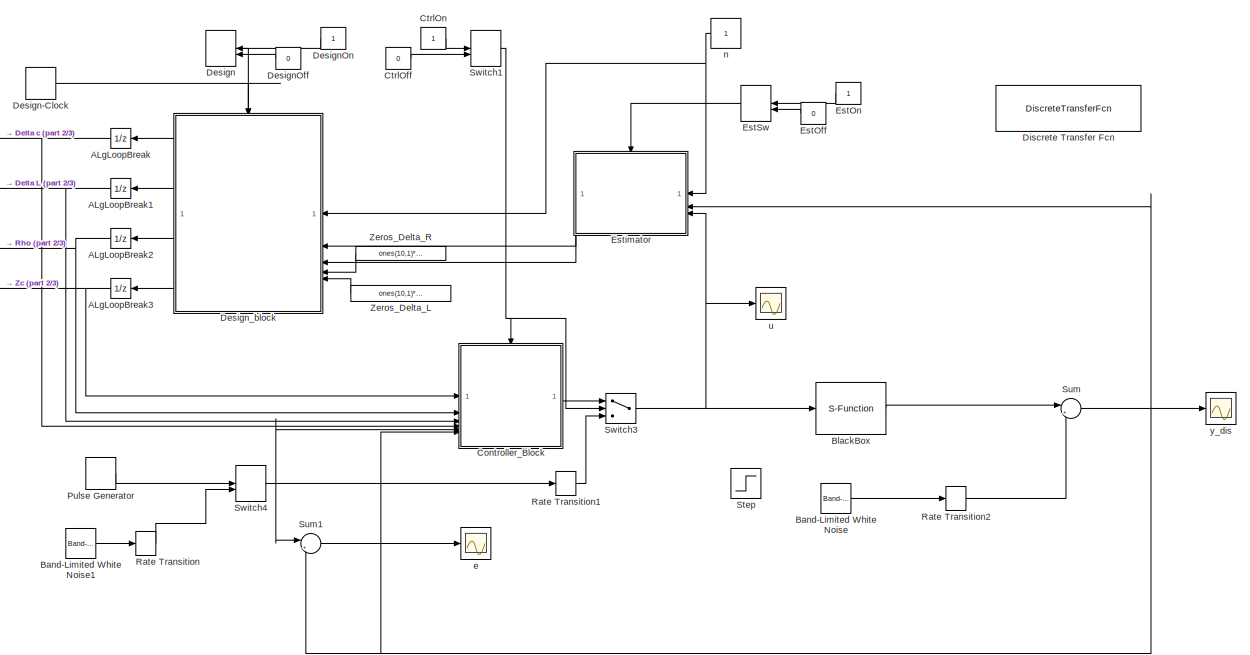
[diagram: root canvas - part 1/3, center side, full height]
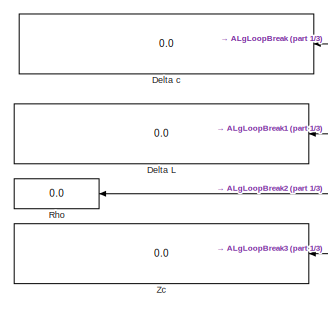
[diagram: root canvas - part 2/3, middle left region]
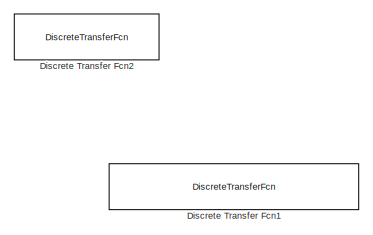
[diagram: root canvas - part 3/3, middle right region]
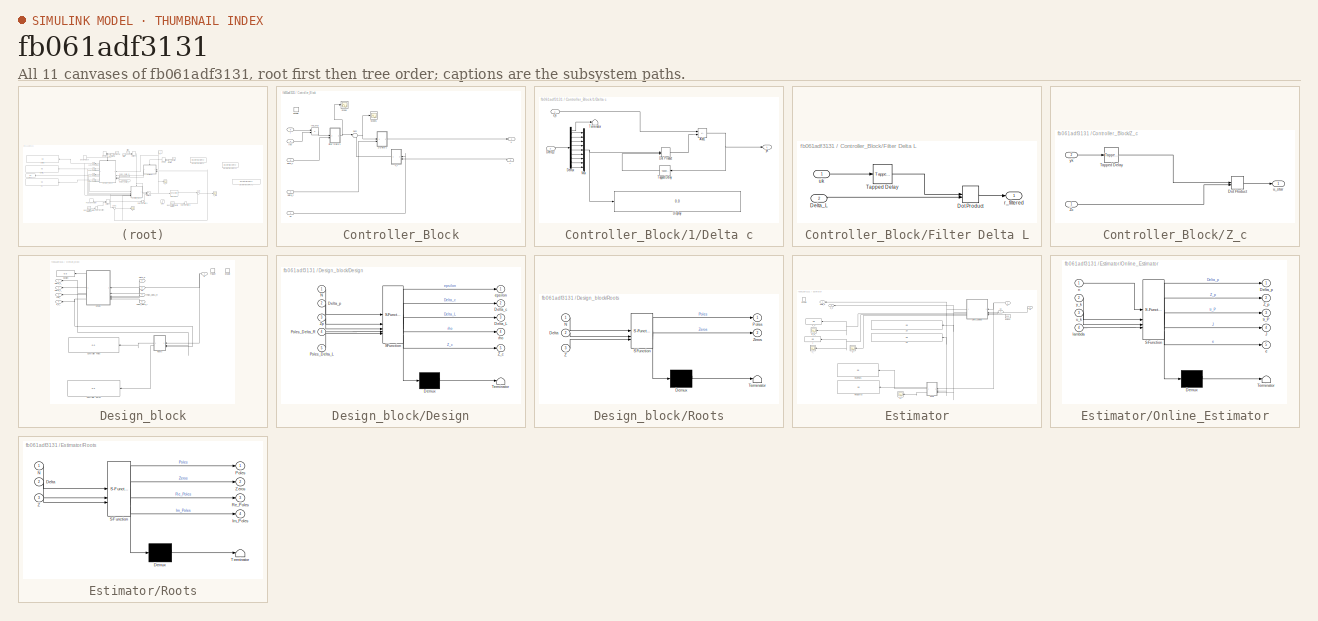
[diagram: thumbnail index - all 11 canvases of the model, root first then tree order]
MODEL slx_fb061adf3131
KIND model
CONFIG AbsTol = auto
CONFIG EnableMultiTasking = on
CONFIG FixedStep = .01
CONFIG MaxStep = auto
CONFIG MinStep = auto
CONFIG RelTol = 1e-3
CONFIG SampleTimeConstraint = Unconstrained
CONFIG SolverName = FixedStepDiscrete
CONFIG StartTime = 0.0
CONFIG StopTime = inf
BLOCK [UnitDelay] ALgLoopBreak
  HasFrameUpgradeWarning = on
  NameLocation = top
  SampleTime = -1
BLOCK [UnitDelay] ALgLoopBreak1
  HasFrameUpgradeWarning = on
  NameLocation = top
  SampleTime = -1
BLOCK [UnitDelay] ALgLoopBreak2
  HasFrameUpgradeWarning = on
  NameLocation = top
  SampleTime = -1
BLOCK [UnitDelay] ALgLoopBreak3
  HasFrameUpgradeWarning = on
  NameLocation = top
  SampleTime = -1
BLOCK [Reference] Band-Limited White Noise  REF=simulink/Sources/Band-Limited
White Noise
  SourceBlock = simulink/Sources/Band-Limited\nWhite Noise
  SourceType = Band-Limited White Noise.
BLOCK [Reference] Band-Limited White Noise1  REF=simulink/Sources/Band-Limited
White Noise
  SourceBlock = simulink/Sources/Band-Limited\nWhite Noise
  SourceType = Band-Limited White Noise.
BLOCK [S-Function] BlackBox
  EnableBusSupport = off
  FunctionName = Blackbox_2024
  SFcnIsStateOwnerBlock = off
  SFunctionDeploymentMode = off
BLOCK [SubSystem] Controller_Block
BLOCK [SubSystem] Controller_Block/1//Delta c
BLOCK [Sum] Controller_Block/1//Delta c/Add1
  IconShape = rectangular
  Inputs = +-
BLOCK [Inport] Controller_Block/1//Delta c/Delta_c
  NameLocation = top
  Port = 2
BLOCK [Demux] Controller_Block/1//Delta c/Demux
  Outputs = 10
BLOCK [Display] Controller_Block/1//Delta c/Display
  Decimation = 1
BLOCK [DotProduct] Controller_Block/1//Delta c/Dot Product
  OutDataTypeStr = Inherit: Inherit via internal rule
BLOCK [Mux] Controller_Block/1//Delta c/Mux
  DisplayOption = bar
  Inputs = 9
BLOCK [Reference] Controller_Block/1//Delta c/Tapped Delay  REF=simulink/Discrete/Tapped Delay
  NameLocation = top
  SourceBlock = simulink/Discrete/Tapped Delay
  SourceType = Tapped Delay Line
BLOCK [Terminator] Controller_Block/1//Delta c/Terminator
BLOCK [Inport] Controller_Block/1//Delta c/e_k
BLOCK [Outport] Controller_Block/1//Delta c/yk
BLOCK [EnablePort] Controller_Block/Enable
  StatesWhenEnabling = reset
BLOCK [SubSystem] Controller_Block/Filter Delta L
BLOCK [Inport] Controller_Block/Filter Delta L/Delta_L
  Port = 2
BLOCK [DotProduct] Controller_Block/Filter Delta L/Dot Product
  OutDataTypeStr = Inherit: Inherit via internal rule
BLOCK [Reference] Controller_Block/Filter Delta L/Tapped Delay  REF=simulink/Discrete/Tapped Delay
  SourceBlock = simulink/Discrete/Tapped Delay
  SourceType = Tapped Delay Line
BLOCK [Outport] Controller_Block/Filter Delta L/r_filtered
BLOCK [Inport] Controller_Block/Filter Delta L/uk
BLOCK [Scope] Controller_Block/Scope
  Floating = off
  NumInputPorts = 1
  ScopeSpecificationString = Simulink.scopes.TimeScopeBlockCfg('CurrentConfiguration', extmgr.ConfigurationSet(extmgr.Configuration('Core','General UI',true),extmgr.Configuration('Core','Source UI',true),extmgr.Configuration('Sources','WiredSimulink',true),extmgr.Configuration('Visuals','Time Domain',true,'SerializedDisplays',{struct('MinYLimReal','-0.04','MaxYLimReal','0.17958','YLabelReal','','MinYLimMag','0.00000','MaxYLim...<+1417ch>
BLOCK [Scope] Controller_Block/Scope1
  Floating = off
  NumInputPorts = 1
  ScopeSpecificationString = Simulink.scopes.TimeScopeBlockCfg('CurrentConfiguration', extmgr.ConfigurationSet(extmgr.Configuration('Core','General UI',true),extmgr.Configuration('Core','Source UI',true),extmgr.Configuration('Sources','WiredSimulink',true),extmgr.Configuration('Visuals','Time Domain',true,'SerializedDisplays',{struct('MinYLimReal','-183299655188941.8125','MaxYLimReal','316765694530376.875','YLabelReal','','Mi...<+1556ch>
BLOCK [Sum] Controller_Block/Sum
  Inputs = |+-
BLOCK [SubSystem] Controller_Block/Z_c
  NameLocation = top
BLOCK [DotProduct] Controller_Block/Z_c/Dot Product
  OutDataTypeStr = Inherit: Inherit via internal rule
BLOCK [Reference] Controller_Block/Z_c/Tapped Delay  REF=simulink/Discrete/Tapped Delay
  SourceBlock = simulink/Discrete/Tapped Delay
  SourceType = Tapped Delay Line
BLOCK [Inport] Controller_Block/Z_c/Zc
BLOCK [Outport] Controller_Block/Z_c/u_star
BLOCK [Inport] Controller_Block/Z_c/yk
  Port = 2
BLOCK [Inport] Controller_Block/Zc
  NameLocation = top
BLOCK [Inport] Controller_Block/delta_L
  Port = 3
BLOCK [Inport] Controller_Block/delta_c
  Port = 4
BLOCK [Inport] Controller_Block/r
  Port = 5
BLOCK [Inport] Controller_Block/rho
  Port = 2
BLOCK [Product] Controller_Block/rho_mul
  RndMeth = Zero
BLOCK [Outport] Controller_Block/u
BLOCK [Inport] Controller_Block/y
  NameLocation = top
  Port = 6
BLOCK [Constant] CtrlOff
  NameLocation = top
  SampleTime = -1
  Value = 0
BLOCK [Constant] CtrlOn
  NameLocation = top
  SampleTime = -1
BLOCK [Display] Delta L
  Decimation = 1
  NameLocation = top
BLOCK [Display] Delta c
  Decimation = 1
  NameLocation = top
BLOCK [ManualSwitch] Design
BLOCK [DiscretePulseGenerator] Design-Clock
  Period = .5
  PulseType = Time based
  PulseWidth = 50
BLOCK [Constant] DesignOff
  SampleTime = -1
  Value = 0
BLOCK [Constant] DesignOn
  SampleTime = -1
BLOCK [SubSystem] Design_block
BLOCK [Display] Design_block/Controller Poles
  Commented = on
  Decimation = 1
  NameLocation = top
BLOCK [Display] Design_block/Controller Zeros
  Commented = on
  Decimation = 1
  NameLocation = top
BLOCK [Outport] Design_block/Delta_L_
  Port = 2
BLOCK [Outport] Design_block/Delta_c_
BLOCK [Inport] Design_block/Delta_p
  Port = 2
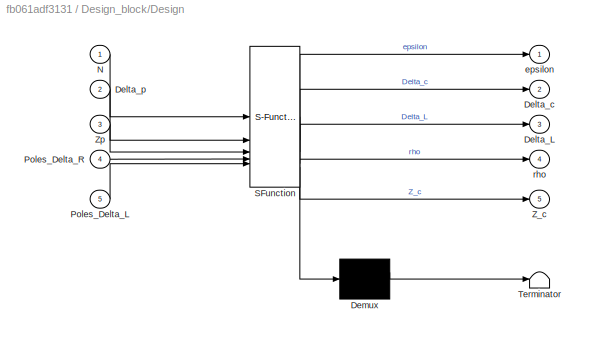
BLOCK [SubSystem] Design_block/Design
  ErrorFcn = Stateflow.Translate.translate
  PermitHierarchicalResolution = ExplicitOnly
  SFBlockType = MATLAB Function
  TreatAsAtomicUnit = on
BLOCK [Demux] Design_block/Design/ Demux 
  Outputs = 1
BLOCK [S-Function] Design_block/Design/ SFunction 
  EnableBusSupport = on
  FunctionName = sf_sfun
  PortCounts = [5 6]
  SFcnIsStateOwnerBlock = off
  SFunctionDeploymentMode = off
  Tag = Stateflow S-Function 2
BLOCK [Terminator] Design_block/Design/ Terminator 
BLOCK [Outport] Design_block/Design/Delta_L
  Port = 3
BLOCK [Outport] Design_block/Design/Delta_c
  Port = 2
BLOCK [Inport] Design_block/Design/Delta_p
  Port = 2
BLOCK [Inport] Design_block/Design/N
BLOCK [Inport] Design_block/Design/Poles_Delta_L
  Port = 5
BLOCK [Inport] Design_block/Design/Poles_Delta_R
  Port = 4
BLOCK [Outport] Design_block/Design/Z_c
  Port = 5
BLOCK [Inport] Design_block/Design/Zp
  Port = 3
BLOCK [Outport] Design_block/Design/epsilon
BLOCK [Outport] Design_block/Design/rho
  Port = 4
BLOCK [EnablePort] Design_block/Enable
  StatesWhenEnabling = reset
BLOCK [Display] Design_block/Epsilon
  Decimation = 1
  NameLocation = top
BLOCK [Inport] Design_block/N
BLOCK [Inport] Design_block/Poles_Delta_L
  Port = 5
BLOCK [Inport] Design_block/Poles_Delta_R
  Port = 4
BLOCK [SubSystem] Design_block/Roots
  Commented = on
  ErrorFcn = Stateflow.Translate.translate
  PermitHierarchicalResolution = ExplicitOnly
  SFBlockType = MATLAB Function
  TreatAsAtomicUnit = on
BLOCK [Demux] Design_block/Roots/ Demux 
  Outputs = 1
BLOCK [S-Function] Design_block/Roots/ SFunction 
  EnableBusSupport = on
  FunctionName = sf_sfun
  PortCounts = [3 3]
  SFcnIsStateOwnerBlock = off
  SFunctionDeploymentMode = off
  Tag = Stateflow S-Function 3
BLOCK [Terminator] Design_block/Roots/ Terminator 
BLOCK [Inport] Design_block/Roots/Delta
  Port = 2
BLOCK [Inport] Design_block/Roots/N
BLOCK [Outport] Design_block/Roots/Poles
BLOCK [Inport] Design_block/Roots/Z
  Port = 3
BLOCK [Outport] Design_block/Roots/Zeros
  Port = 2
BLOCK [TriggerPort] Design_block/Trigger
  PortDimensions = 1
  StatesWhenEnabling = held
  VariantControl = (inherit)
BLOCK [Outport] Design_block/Z_c_
  Port = 4
BLOCK [Inport] Design_block/Zp
  Port = 3
BLOCK [Outport] Design_block/rho_
  Port = 3
BLOCK [DiscreteTransferFcn] Discrete Transfer Fcn
  Denominator = [1 -1.0646 0.3679]
  InputPortMap = u0
  Numerator = [0.7585 -0.4552]
BLOCK [DiscreteTransferFcn] Discrete Transfer Fcn1
  Denominator = [1 -0.65 -0.3679]
  InputPortMap = u0
  Numerator = [0.7585 -0.4552]
BLOCK [DiscreteTransferFcn] Discrete Transfer Fcn2
  Denominator = [1 -0.65 -0.3679 0.2]
  InputPortMap = u0
  Numerator = [0.7585 -0.4552 -0.15]
BLOCK [Constant] EstOff
  SampleTime = -1
  Value = 0
BLOCK [Constant] EstOn
  SampleTime = -1
BLOCK [ManualSwitch] EstSw
BLOCK [SubSystem] Estimator
BLOCK [Outport] Estimator/Delta_p
BLOCK [EnablePort] Estimator/Enable
  StatesWhenEnabling = reset
BLOCK [Display] Estimator/J
  Decimation = 1
  NameLocation = top
BLOCK [Scope] Estimator/J_
  Floating = off
  NameLocation = top
  NumInputPorts = 1
  ScopeSpecificationString = Simulink.scopes.TimeScopeBlockCfg('CurrentConfiguration', extmgr.ConfigurationSet(extmgr.Configuration('Core','General UI',true,'FigureColor',[0.156862745098039 0.156862745098039 0.156862745098039]),extmgr.Configuration('Core','Source UI',true),extmgr.Configuration('Sources','WiredSimulink',true,'DataLoggingVariableName','ScopeData3','DataLoggingSaveFormat','StructureWithTime','DataLoggingLimitDat...<+2754ch>
BLOCK [Inport] Estimator/N
BLOCK [Display] Estimator/Np
  Decimation = 1
  NameLocation = top
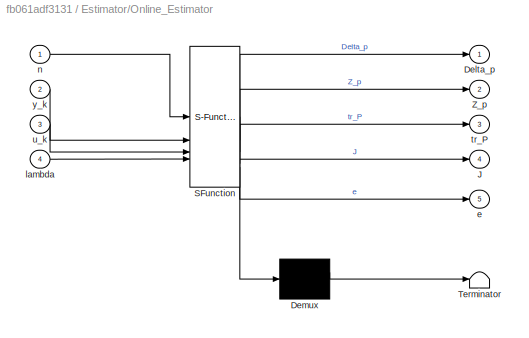
BLOCK [SubSystem] Estimator/Online_Estimator
  ErrorFcn = Stateflow.Translate.translate
  PermitHierarchicalResolution = ExplicitOnly
  SFBlockType = MATLAB Function
  TreatAsAtomicUnit = on
BLOCK [Demux] Estimator/Online_Estimator/ Demux 
  Outputs = 1
BLOCK [S-Function] Estimator/Online_Estimator/ SFunction 
  EnableBusSupport = on
  FunctionName = sf_sfun
  PortCounts = [4 6]
  SFcnIsStateOwnerBlock = off
  SFunctionDeploymentMode = off
  Tag = Stateflow S-Function 1
BLOCK [Terminator] Estimator/Online_Estimator/ Terminator 
BLOCK [Outport] Estimator/Online_Estimator/Delta_p
BLOCK [Outport] Estimator/Online_Estimator/J
  Port = 4
BLOCK [Outport] Estimator/Online_Estimator/Z_p
  Port = 2
BLOCK [Outport] Estimator/Online_Estimator/e
  Port = 5
BLOCK [Inport] Estimator/Online_Estimator/lambda
  Port = 4
BLOCK [Inport] Estimator/Online_Estimator/n
BLOCK [Outport] Estimator/Online_Estimator/tr_P
  Port = 3
BLOCK [Inport] Estimator/Online_Estimator/u_k
  Port = 3
BLOCK [Inport] Estimator/Online_Estimator/y_k
  Port = 2
BLOCK [Display] Estimator/Plant Poles
  Decimation = 1
  NameLocation = top
BLOCK [Display] Estimator/Plant Zeros
  Decimation = 1
  NameLocation = top
BLOCK [SubSystem] Estimator/Roots
  Commented = on
  ErrorFcn = Stateflow.Translate.translate
  PermitHierarchicalResolution = ExplicitOnly
  SFBlockType = MATLAB Function
  TreatAsAtomicUnit = on
BLOCK [Demux] Estimator/Roots/ Demux 
  Outputs = 1
BLOCK [S-Function] Estimator/Roots/ SFunction 
  EnableBusSupport = off
  FunctionName = sf_sfun
  PortCounts = [3 5]
  SFcnIsStateOwnerBlock = off
  SFunctionDeploymentMode = off
  Tag = Stateflow S-Function 4
BLOCK [Terminator] Estimator/Roots/ Terminator 
BLOCK [Inport] Estimator/Roots/Delta
  Port = 2
BLOCK [Outport] Estimator/Roots/Im_Poles
  Port = 4
BLOCK [Inport] Estimator/Roots/N
BLOCK [Outport] Estimator/Roots/Poles
BLOCK [Outport] Estimator/Roots/Re_Poles
  Port = 3
BLOCK [Inport] Estimator/Roots/Z
  Port = 3
BLOCK [Outport] Estimator/Roots/Zeros
  Port = 2
BLOCK [Outport] Estimator/Z_p
  Port = 2
BLOCK [Display] Estimator/Zp
  Decimation = 1
  NameLocation = top
BLOCK [Scope] Estimator/e
  Floating = off
  NameLocation = top
  NumInputPorts = 1
  ScopeSpecificationString = Simulink.scopes.TimeScopeBlockCfg('CurrentConfiguration', extmgr.ConfigurationSet(extmgr.Configuration('Core','General UI',true,'FigureColor',[0.156862745098039 0.156862745098039 0.156862745098039]),extmgr.Configuration('Core','Source UI',true),extmgr.Configuration('Sources','WiredSimulink',true,'DataLoggingVariableName','ScopeData5','DataLoggingSaveFormat','StructureWithTime','DataLoggingLimitDat...<+2752ch>
BLOCK [Scope] Estimator/e1
  Floating = off
  NameLocation = top
  NumInputPorts = 1
  ScopeSpecificationString = Simulink.scopes.TimeScopeBlockCfg('CurrentConfiguration', extmgr.ConfigurationSet(extmgr.Configuration('Core','General UI',true,'FigureColor',[0.156862745098039 0.156862745098039 0.156862745098039]),extmgr.Configuration('Core','Source UI',true),extmgr.Configuration('Sources','WiredSimulink',true,'DataLoggingVariableName','ScopeData6','DataLoggingSaveFormat','StructureWithTime','DataLoggingLimitDat...<+2764ch>
BLOCK [Constant] Estimator/lambda
  NameLocation = top
  Value = .999
BLOCK [Display] Estimator/tr_P
  Decimation = 1
  NameLocation = top
BLOCK [Scope] Estimator/tr_P_
  Floating = off
  NameLocation = top
  NumInputPorts = 1
  ScopeSpecificationString = Simulink.scopes.TimeScopeBlockCfg('CurrentConfiguration', extmgr.ConfigurationSet(extmgr.Configuration('Core','General UI',true,'FigureColor',[0.156862745098039 0.156862745098039 0.156862745098039]),extmgr.Configuration('Core','Source UI',true),extmgr.Configuration('Sources','WiredSimulink',true,'DataLoggingVariableName','ScopeData2','DataLoggingSaveFormat','StructureWithTime','DataLoggingLimitDat...<+2765ch>
BLOCK [Inport] Estimator/uk
  NameLocation = top
  Port = 3
BLOCK [Inport] Estimator/yk
  NameLocation = top
  Port = 2
BLOCK [DiscretePulseGenerator] Pulse Generator
  Period = 1
  PulseType = Time based
  PulseWidth = 50
BLOCK [RateTransition] Rate Transition
  Integrity = off
  OutPortSampleTimeOpt = Inherit
BLOCK [RateTransition] Rate Transition1
  Integrity = off
  OutPortSampleTimeOpt = Inherit
BLOCK [RateTransition] Rate Transition2
  Integrity = off
  OutPortSampleTimeOpt = Inherit
BLOCK [Display] Rho
  Decimation = 1
  NameLocation = top
BLOCK [Step] Step
  SampleTime = 0
BLOCK [Sum] Sum
  Inputs = |++
BLOCK [Sum] Sum1
  Inputs = |+-
BLOCK [ManualSwitch] Switch1
  CurrentSetting = 0
BLOCK [Switch] Switch3
  Criteria = u2 ~= 0
  InputSameDT = off
  SaturateOnIntegerOverflow = off
BLOCK [ManualSwitch] Switch4
BLOCK [Display] Zc
  Decimation = 1
  NameLocation = top
BLOCK [Constant] Zeros_Delta_L
  NameLocation = top
  Value = ones(10,1)*.1
BLOCK [Constant] Zeros_Delta_R
  NameLocation = top
  Value = ones(10,1)*.65
BLOCK [Scope] e
  Floating = off
  NumInputPorts = 1
  ScopeSpecificationString = Simulink.scopes.TimeScopeBlockCfg('CurrentConfiguration', extmgr.ConfigurationSet(extmgr.Configuration('Core','General UI',true,'FigureColor',[0.156862745098039 0.156862745098039 0.156862745098039]),extmgr.Configuration('Core','Source UI',true),extmgr.Configuration('Sources','WiredSimulink',true,'DataLoggingVariableName','ScopeData4','DataLoggingSaveFormat','StructureWithTime','DataLoggingLimitDat...<+2923ch>
BLOCK [Constant] n
  NameLocation = top
BLOCK [Scope] u
  Floating = off
  NumInputPorts = 1
  ScopeSpecificationString = Simulink.scopes.TimeScopeBlockCfg('CurrentConfiguration', extmgr.ConfigurationSet(extmgr.Configuration('Core','General UI',true,'FigureColor',[0.156862745098039 0.156862745098039 0.156862745098039]),extmgr.Configuration('Core','Source UI',true),extmgr.Configuration('Sources','WiredSimulink',true,'DataLoggingSaveFormat','StructureWithTime','DataLoggingLimitDataPoints',true,'DataLoggingDecimation','...<+2821ch>
BLOCK [Scope] y_dis
  Floating = off
  NumInputPorts = 1
  ScopeSpecificationString = Simulink.scopes.TimeScopeBlockCfg('CurrentConfiguration', extmgr.ConfigurationSet(extmgr.Configuration('Core','General UI',true,'FigureColor',[0.156862745098039 0.156862745098039 0.156862745098039]),extmgr.Configuration('Core','Source UI',true),extmgr.Configuration('Sources','WiredSimulink',true,'DataLoggingVariableName','ScopeData1','DataLoggingSaveFormat','StructureWithTime','DataLoggingLimitDat...<+2949ch>
NET ALgLoopBreak1:1 -> Controller_Block:3, Delta L:1
NET ALgLoopBreak2:1 -> Controller_Block:2, Rho:1
NET ALgLoopBreak3:1 -> Controller_Block:1, Zc:1
NET ALgLoopBreak:1 -> Controller_Block:4, Delta c:1
LINE Band-Limited White Noise1:1 -> Rate Transition:1
LINE Band-Limited White Noise:1 -> Rate Transition2:1
LINE BlackBox:1 -> Sum:1
NET Controller_Block/1//Delta c/Add1:1 -> Controller_Block/1//Delta c/Tapped Delay:1, Controller_Block/1//Delta c/yk:1
LINE Controller_Block/1//Delta c/Delta_c:1 -> Controller_Block/1//Delta c/Demux:1
LINE Controller_Block/1//Delta c/Demux:1 -> Controller_Block/1//Delta c/Terminator:1
LINE Controller_Block/1//Delta c/Demux:10 -> Controller_Block/1//Delta c/Mux:9
LINE Controller_Block/1//Delta c/Demux:2 -> Controller_Block/1//Delta c/Mux:1
LINE Controller_Block/1//Delta c/Demux:3 -> Controller_Block/1//Delta c/Mux:2
LINE Controller_Block/1//Delta c/Demux:4 -> Controller_Block/1//Delta c/Mux:3
LINE Controller_Block/1//Delta c/Demux:5 -> Controller_Block/1//Delta c/Mux:4
LINE Controller_Block/1//Delta c/Demux:6 -> Controller_Block/1//Delta c/Mux:5
LINE Controller_Block/1//Delta c/Demux:7 -> Controller_Block/1//Delta c/Mux:6
LINE Controller_Block/1//Delta c/Demux:8 -> Controller_Block/1//Delta c/Mux:7
LINE Controller_Block/1//Delta c/Demux:9 -> Controller_Block/1//Delta c/Mux:8
LINE Controller_Block/1//Delta c/Dot Product:1 -> Controller_Block/1//Delta c/Add1:2
NET Controller_Block/1//Delta c/Mux:1 -> Controller_Block/1//Delta c/Display:1, Controller_Block/1//Delta c/Dot Product:1
LINE Controller_Block/1//Delta c/Tapped Delay:1 -> Controller_Block/1//Delta c/Dot Product:2
LINE Controller_Block/1//Delta c/e_k:1 -> Controller_Block/1//Delta c/Add1:1
LINE Controller_Block/1//Delta c:1 -> Controller_Block/u:1
LINE Controller_Block/Filter Delta L/Delta_L:1 -> Controller_Block/Filter Delta L/Dot Product:2
LINE Controller_Block/Filter Delta L/Dot Product:1 -> Controller_Block/Filter Delta L/r_filtered:1
LINE Controller_Block/Filter Delta L/Tapped Delay:1 -> Controller_Block/Filter Delta L/Dot Product:1
LINE Controller_Block/Filter Delta L/uk:1 -> Controller_Block/Filter Delta L/Tapped Delay:1
NET Controller_Block/Filter Delta L:1 -> Controller_Block/Scope:1, Controller_Block/Sum:1
NET Controller_Block/Sum:1 -> Controller_Block/1//Delta c:1, Controller_Block/Scope1:1
LINE Controller_Block/Z_c/Dot Product:1 -> Controller_Block/Z_c/u_star:1
LINE Controller_Block/Z_c/Tapped Delay:1 -> Controller_Block/Z_c/Dot Product:1
LINE Controller_Block/Z_c/Zc:1 -> Controller_Block/Z_c/Dot Product:2
LINE Controller_Block/Z_c/yk:1 -> Controller_Block/Z_c/Tapped Delay:1
LINE Controller_Block/Z_c:1 -> Controller_Block/Sum:2
LINE Controller_Block/Zc:1 -> Controller_Block/Z_c:1
LINE Controller_Block/delta_L:1 -> Controller_Block/Filter Delta L:2
LINE Controller_Block/delta_c:1 -> Controller_Block/1//Delta c:2
LINE Controller_Block/r:1 -> Controller_Block/rho_mul:1
LINE Controller_Block/rho:1 -> Controller_Block/rho_mul:2
LINE Controller_Block/rho_mul:1 -> Controller_Block/Filter Delta L:1
LINE Controller_Block/y:1 -> Controller_Block/Z_c:2
LINE Controller_Block:1 -> Switch3:1
LINE CtrlOff:1 -> Switch1:2
LINE CtrlOn:1 -> Switch1:1
LINE Design-Clock:1 -> Design_block:trigger
LINE Design:1 -> Design_block:enable
LINE DesignOff:1 -> Design:2
LINE DesignOn:1 -> Design:1
LINE Design_block/Delta_p:1 -> Design_block/Design:2
LINE Design_block/Design:1 -> Design_block/Epsilon:1
NET Design_block/Design:2 -> Design_block/Delta_c_:1, Design_block/Roots:2
LINE Design_block/Design:3 -> Design_block/Delta_L_:1
LINE Design_block/Design:4 -> Design_block/rho_:1
NET Design_block/Design:5 -> Design_block/Roots:3, Design_block/Z_c_:1
NET Design_block/N:1 -> Design_block/Design:1, Design_block/Roots:1
LINE Design_block/Poles_Delta_L:1 -> Design_block/Design:5
LINE Design_block/Poles_Delta_R:1 -> Design_block/Design:4
LINE Design_block/Roots:1 -> Design_block/Controller Poles:1
LINE Design_block/Roots:2 -> Design_block/Controller Zeros:1
LINE Design_block/Zp:1 -> Design_block/Design:3
LINE Design_block:1 -> ALgLoopBreak:1
LINE Design_block:2 -> ALgLoopBreak1:1
LINE Design_block:3 -> ALgLoopBreak2:1
LINE Design_block:4 -> ALgLoopBreak3:1
LINE EstOff:1 -> EstSw:2
LINE EstOn:1 -> EstSw:1
LINE EstSw:1 -> Estimator:enable
NET Estimator/N:1 -> Estimator/Online_Estimator:1, Estimator/Roots:1
NET Estimator/Online_Estimator:1 -> Estimator/Delta_p:1, Estimator/Np:1, Estimator/Roots:2
NET Estimator/Online_Estimator:2 -> Estimator/Roots:3, Estimator/Z_p:1, Estimator/Zp:1
NET Estimator/Online_Estimator:3 -> Estimator/tr_P:1, Estimator/tr_P_:1
NET Estimator/Online_Estimator:4 -> Estimator/J:1, Estimator/J_:1
LINE Estimator/Online_Estimator:5 -> Estimator/e:1
LINE Estimator/Roots:1 -> Estimator/Plant Poles:1
LINE Estimator/Roots:2 -> Estimator/Plant Zeros:1
LINE Estimator/Roots:3 -> Estimator/e1:1
LINE Estimator/lambda:1 -> Estimator/Online_Estimator:4
LINE Estimator/uk:1 -> Estimator/Online_Estimator:3
LINE Estimator/yk:1 -> Estimator/Online_Estimator:2
LINE Estimator:1 -> Design_block:2
LINE Estimator:2 -> Design_block:3
LINE Pulse Generator:1 -> Switch4:1
LINE Rate Transition1:1 -> Switch3:3
LINE Rate Transition2:1 -> Sum:2
LINE Rate Transition:1 -> Switch4:2
LINE Sum1:1 -> e:1
NET Sum:1 -> Controller_Block:6, Estimator:2, Sum1:2, y_dis:1
NET Switch1:1 -> Controller_Block:enable, Switch3:2
NET Switch3:1 -> BlackBox:1, Estimator:3, u:1
NET Switch4:1 -> Controller_Block:5, Rate Transition1:1, Sum1:1
LINE Zeros_Delta_L:1 -> Design_block:5
LINE Zeros_Delta_R:1 -> Design_block:4
NET n:1 -> Design_block:1, Estimator:1
note: NET lines group one-source signal fan-out (src -> all destinations, sorted); 1:1 wires keep LINE
CHART Estimator/Online_Estimator states=1 transitions=1
  STATE_LABEL 'eML_blk_kernel()'
  STATE_LABEL 'SCRIPT:\nfunction [Delta_p, Z_p, tr_P, J, e  ] = fcn(n, y_k, u_k, lambda)\n%eml\nm = n -1;\npersistent P;\npersistent theta_hat;\npersistent old_n; \npersistent phi;\npersistent J_per;\nn_max = 10;\nDelta_p = zeros(1, n_max);\nZ_p = zeros(1, n_max);\nek = 0;\n\n\nn = min(n, n_max);\n\nif (isempty(old_n))\n    old_n = n;\nend\n\n%Initialization\nif (isempty(P) || old_n ~= n) % If the order variable n has changed -> New ...<+760ch>'
CHART Design_block/Design states=1 transitions=1
  STATE_LABEL 'eML_blk_kernel()'
  STATE_LABEL 'SCRIPT:\nfunction [epsilon,Delta_c ,Delta_L, rho, Z_c  ] = fcn(N, Delta_p, Zp, Poles_Delta_R, Poles_Delta_L)\n%% Statische Initialisieren \n% Es werden alle Variablen statisch initialisiert um eine \n% dynamische Speicherallokation zu verhindern\nn = N;\nm = n-1;\nmax = 10; % Maximale größe\n\n% P initial mit 0 definieren\nP = zeros(max,max);\n% Initialisieren von lambda und gamma mit max Length\nlambda = zer...<+3456ch>'
CHART Design_block/Roots states=1 transitions=1
  STATE_LABEL 'eML_blk_kernel()'
  STATE_LABEL 'SCRIPT:\nfunction [Poles, Zeros  ] = fcn(N, Delta, Z)\n%eml \n\nn_max = 10;\nPoles= 1i*zeros(n_max,1);\nZeros = 1i*zeros(n_max,1);\n\n\nn = min(N, n_max);\n% Convert roots to coefs\nPoles(1:n-1) = roots(Delta(1:n));\nZeros(1:n-1) = roots(Z(1:n));\n\n'
CHART Estimator/Roots states=1 transitions=1
  STATE_LABEL 'eML_blk_kernel()'
  STATE_LABEL 'SCRIPT:\nfunction [Poles, Zeros, Re_Poles, Im_Poles   ] = fcn(N, Delta, Z)\n%eml \n\nn_max = 10;\nPoles= 1i*zeros(n_max,1);\nZeros = 1i*zeros(n_max,1);\n\n\nn = min(N, n_max);\n% Convert roots to coefs\nPoles(1:n) = roots(Delta(1:n+1));\nif (sum(abs(Z)) ~= 0 )\n  Zeros(1:n-1) = roots(Z(2:n+1));\nend\n\nRe_Poles = real(Poles); \nIm_Poles = imag(Poles);\n'
CHART  states=0 transitions=0
CHART  states=0 transitions=0
CHART  states=0 transitions=0
CHART  states=0 transitions=0
